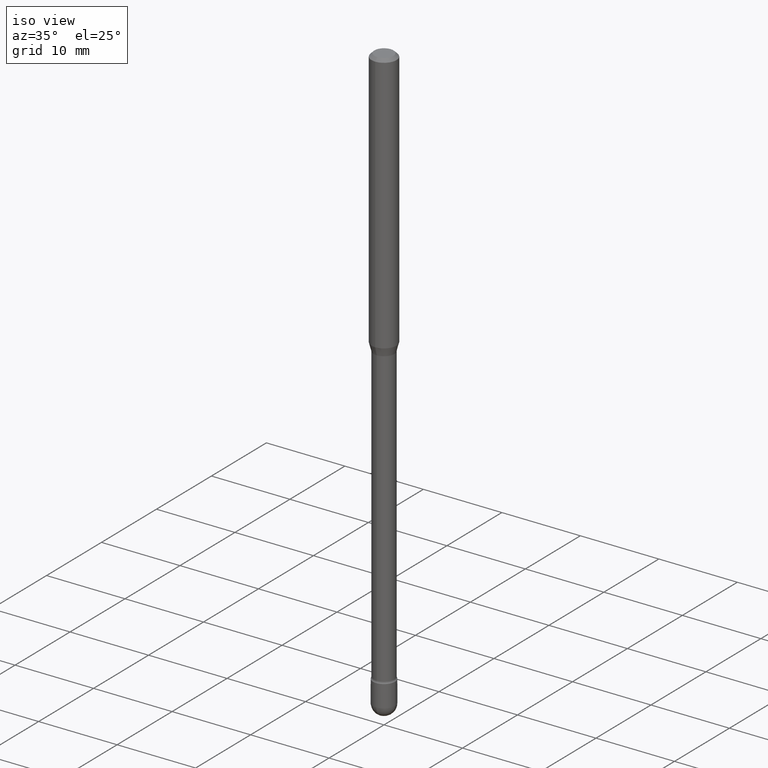
[diagram: clean part render]
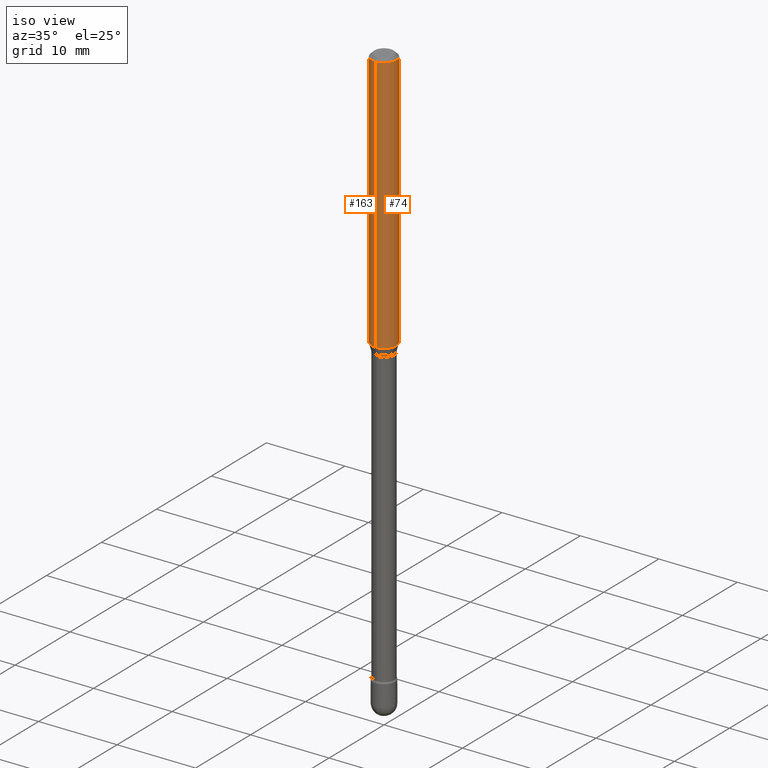
[diagram: same view with one multi-face feature highlighted, each face labeled with its STEP entity id]
A machine part, iso view. The highlighted faces form ONE feature: a constant-radius fillet chain: 2 tangent blend faces with common blend radius 1.5875 mm. The faces share edges in the B-rep.
Their STEP definitions:
[1] entity #74 (Cylinder):
#6 = DIRECTION ( 'NONE',  ( -6.982962677686265922E-15, -1.000000000000000000, 3.483106191921935554E-15 ) ) ;
#25 = VERTEX_POINT ( 'NONE', #329 ) ;
#35 = LINE ( 'NONE', #297, #508 ) ;
#38 = AXIS2_PLACEMENT_3D ( 'NONE', #345, #217, #6 ) ;
#53 = VERTEX_POINT ( 'NONE', #498 ) ;
#64 = VERTEX_POINT ( 'NONE', #417 ) ;
#74 = ADVANCED_FACE ( 'NONE', ( #102 ), #451, .T. ) ;
#102 = FACE_OUTER_BOUND ( 'NONE', #445, .T. ) ;
#113 = EDGE_CURVE ( 'NONE', #64, #53, #35, .T. ) ;
#168 = CIRCLE ( 'NONE', #38, 0.06250000000000000000 ) ;
#171 = DIRECTION ( 'NONE',  ( -2.445438913098746868E-29, 3.491524147444264637E-15, 1.000000000000000000 ) ) ;
#187 = ORIENTED_EDGE ( 'NONE', *, *, #269, .T. ) ;
#192 = AXIS2_PLACEMENT_3D ( 'NONE', #366, #548, #203 ) ;
#196 = DIRECTION ( 'NONE',  ( -6.982962677686265922E-15, -1.000000000000000000, 4.370956789862821150E-15 ) ) ;
#203 = DIRECTION ( 'NONE',  ( -6.982962677686265922E-15, -1.000000000000000000, 3.491524147444265426E-15 ) ) ;
#212 = VERTEX_POINT ( 'NONE', #551 ) ;
#217 = DIRECTION ( 'NONE',  ( -2.445438913098746868E-29, 3.491524147444264637E-15, 1.000000000000000000 ) ) ;
#240 = ORIENTED_EDGE ( 'NONE', *, *, #337, .T. ) ;
#269 = EDGE_CURVE ( 'NONE', #64, #212, #311, .T. ) ;
#289 = EDGE_CURVE ( 'NONE', #53, #25, #168, .T. ) ;
#297 = CARTESIAN_POINT ( 'NONE',  ( -4.364351673553916201E-16, -0.06250000000000000000, 6.962936581065126030E-16 ) ) ;
#311 = CIRCLE ( 'NONE', #372, 0.06250000000000000000 ) ;
#313 = CARTESIAN_POINT ( 'NONE',  ( 3.202776308162011460E-29, -4.572827707497310591E-15, -1.309693851278256549 ) ) ;
#329 = CARTESIAN_POINT ( 'NONE',  ( 4.440892098500948609E-16, 0.06249999999999995143, -0.01500000000000030129 ) ) ;
#337 = EDGE_CURVE ( 'NONE', #212, #25, #517, .T. ) ;
#345 = CARTESIAN_POINT ( 'NONE',  ( 3.668158369648140306E-31, -5.237286221166425502E-17, -0.01500000000000008271 ) ) ;
#360 = ORIENTED_EDGE ( 'NONE', *, *, #113, .F. ) ;
#366 = CARTESIAN_POINT ( 'NONE',  ( -1.169113584055446105E-44, 1.669184350826100908E-30, 4.780733988912460139E-16 ) ) ;
#372 = AXIS2_PLACEMENT_3D ( 'NONE', #313, #403, #196 ) ;
#403 = DIRECTION ( 'NONE',  ( -2.445438913098746868E-29, 3.491524147444264637E-15, 1.000000000000000000 ) ) ;
#417 = CARTESIAN_POINT ( 'NONE',  ( -4.364351673553594740E-16, -0.06250000000000453804, -1.309693851278256327 ) ) ;
#441 = ORIENTED_EDGE ( 'NONE', *, *, #289, .F. ) ;
#445 = EDGE_LOOP ( 'NONE', ( #187, #240, #441, #360 ) ) ;
#451 = CYLINDRICAL_SURFACE ( 'NONE', #192, 0.06250000000000000000 ) ;
#474 = DIRECTION ( 'NONE',  ( -2.445438913098746868E-29, 3.491524147444264637E-15, 1.000000000000000000 ) ) ;
#480 = CARTESIAN_POINT ( 'NONE',  ( 4.440892098500625669E-16, 0.06250000000000000000, 2.598531396759795234E-16 ) ) ;
#498 = CARTESIAN_POINT ( 'NONE',  ( -4.364351673553912750E-16, -0.06250000000000005551, -0.01499999999999986587 ) ) ;
#508 = VECTOR ( 'NONE', #474, 39.37007874015748143 ) ;
#516 = VECTOR ( 'NONE', #171, 39.37007874015748143 ) ;
#517 = LINE ( 'NONE', #480, #516 ) ;
#548 = DIRECTION ( 'NONE',  ( -2.445438913098746868E-29, 3.491524147444264637E-15, 1.000000000000000000 ) ) ;
#551 = CARTESIAN_POINT ( 'NONE',  ( 4.440892098500946636E-16, 0.06249999999999545502, -1.309693851278256771 ) ) ;
[2] entity #163 (Cylinder):
#25 = VERTEX_POINT ( 'NONE', #329 ) ;
#35 = LINE ( 'NONE', #297, #508 ) ;
#53 = VERTEX_POINT ( 'NONE', #498 ) ;
#64 = VERTEX_POINT ( 'NONE', #417 ) ;
#78 = EDGE_CURVE ( 'NONE', #25, #53, #164, .T. ) ;
#101 = ORIENTED_EDGE ( 'NONE', *, *, #200, .T. ) ;
#110 = DIRECTION ( 'NONE',  ( -2.445438913098746868E-29, 3.491524147444264637E-15, 1.000000000000000000 ) ) ;
#112 = CARTESIAN_POINT ( 'NONE',  ( 3.202776308162011460E-29, -4.572827707497310591E-15, -1.309693851278256549 ) ) ;
#113 = EDGE_CURVE ( 'NONE', #64, #53, #35, .T. ) ;
#128 = CARTESIAN_POINT ( 'NONE',  ( -1.169113584055446105E-44, 1.669184350826100908E-30, 4.780733988912460139E-16 ) ) ;
#157 = CARTESIAN_POINT ( 'NONE',  ( 3.668158369648140306E-31, -5.237286221166425502E-17, -0.01500000000000008271 ) ) ;
#160 = DIRECTION ( 'NONE',  ( -6.982962677686265922E-15, -1.000000000000000000, 3.491524147444265426E-15 ) ) ;
#163 = ADVANCED_FACE ( 'NONE', ( #175 ), #521, .T. ) ;
#164 = CIRCLE ( 'NONE', #250, 0.06250000000000000000 ) ;
#171 = DIRECTION ( 'NONE',  ( -2.445438913098746868E-29, 3.491524147444264637E-15, 1.000000000000000000 ) ) ;
#175 = FACE_OUTER_BOUND ( 'NONE', #276, .T. ) ;
#189 = DIRECTION ( 'NONE',  ( -2.445438913098746868E-29, 3.491524147444264637E-15, 1.000000000000000000 ) ) ;
#191 = ORIENTED_EDGE ( 'NONE', *, *, #113, .T. ) ;
#200 = EDGE_CURVE ( 'NONE', #212, #64, #321, .T. ) ;
#212 = VERTEX_POINT ( 'NONE', #551 ) ;
#250 = AXIS2_PLACEMENT_3D ( 'NONE', #157, #110, #504 ) ;
#276 = EDGE_LOOP ( 'NONE', ( #347, #101, #191, #304 ) ) ;
#279 = AXIS2_PLACEMENT_3D ( 'NONE', #128, #557, #160 ) ;
#297 = CARTESIAN_POINT ( 'NONE',  ( -4.364351673553916201E-16, -0.06250000000000000000, 6.962936581065126030E-16 ) ) ;
#304 = ORIENTED_EDGE ( 'NONE', *, *, #78, .F. ) ;
#310 = DIRECTION ( 'NONE',  ( -6.982962677686265922E-15, -1.000000000000000000, 4.370956789862821150E-15 ) ) ;
#321 = CIRCLE ( 'NONE', #553, 0.06250000000000000000 ) ;
#329 = CARTESIAN_POINT ( 'NONE',  ( 4.440892098500948609E-16, 0.06249999999999995143, -0.01500000000000030129 ) ) ;
#337 = EDGE_CURVE ( 'NONE', #212, #25, #517, .T. ) ;
#347 = ORIENTED_EDGE ( 'NONE', *, *, #337, .F. ) ;
#417 = CARTESIAN_POINT ( 'NONE',  ( -4.364351673553594740E-16, -0.06250000000000453804, -1.309693851278256327 ) ) ;
#474 = DIRECTION ( 'NONE',  ( -2.445438913098746868E-29, 3.491524147444264637E-15, 1.000000000000000000 ) ) ;
#480 = CARTESIAN_POINT ( 'NONE',  ( 4.440892098500625669E-16, 0.06250000000000000000, 2.598531396759795234E-16 ) ) ;
#498 = CARTESIAN_POINT ( 'NONE',  ( -4.364351673553912750E-16, -0.06250000000000005551, -0.01499999999999986587 ) ) ;
#504 = DIRECTION ( 'NONE',  ( -6.982962677686265922E-15, -1.000000000000000000, 3.483106191921935554E-15 ) ) ;
#508 = VECTOR ( 'NONE', #474, 39.37007874015748143 ) ;
#516 = VECTOR ( 'NONE', #171, 39.37007874015748143 ) ;
#517 = LINE ( 'NONE', #480, #516 ) ;
#521 = CYLINDRICAL_SURFACE ( 'NONE', #279, 0.06250000000000000000 ) ;
#551 = CARTESIAN_POINT ( 'NONE',  ( 4.440892098500946636E-16, 0.06249999999999545502, -1.309693851278256771 ) ) ;
#553 = AXIS2_PLACEMENT_3D ( 'NONE', #112, #189, #310 ) ;
#557 = DIRECTION ( 'NONE',  ( -2.445438913098746868E-29, 3.491524147444264637E-15, 1.000000000000000000 ) ) ;